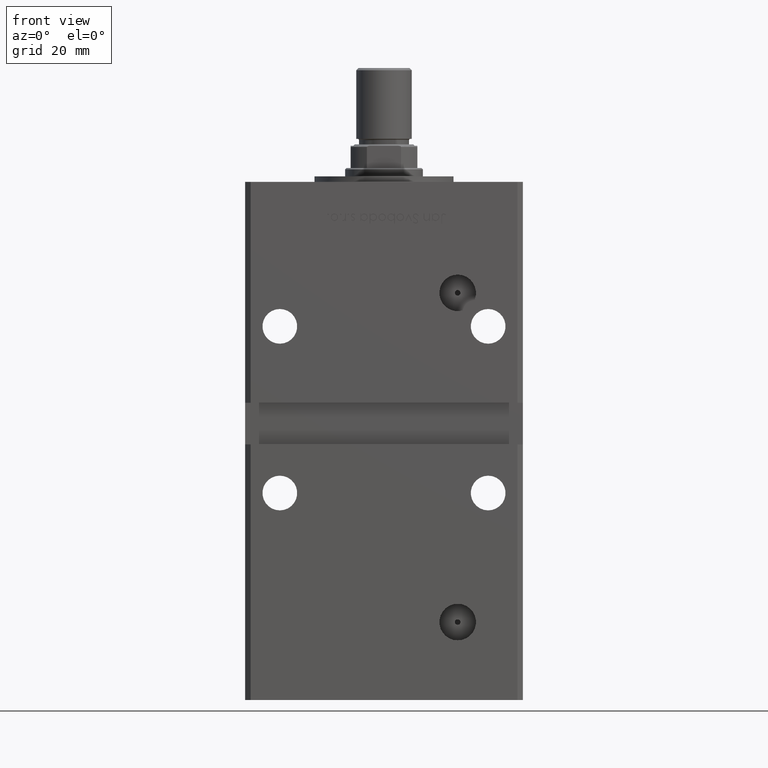
[diagram: clean part render]
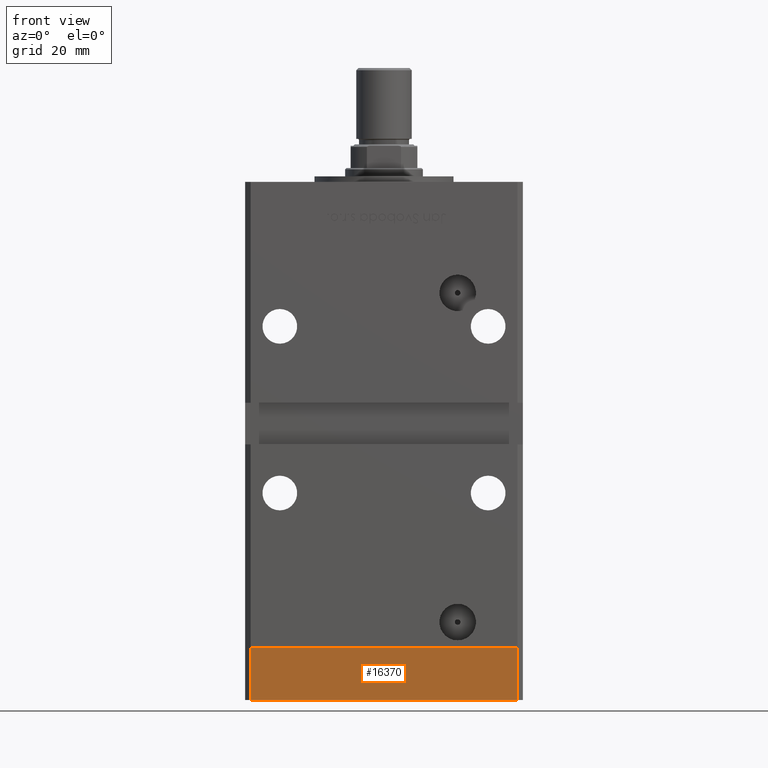
[diagram: same view with one face highlighted and labeled with its STEP entity id]
A machine part, front view. The second image highlights one B-rep face of the part: STEP entity #16370.
In plain terms, the highlighted planar face has unit normal (0, -1, -0).
Its self-contained STEP definition (entity closure, byte-faithful):
#3246 = ORIENTED_EDGE ( 'NONE', *, *, #40921, .F. ) ;
#3377 = DIRECTION ( 'NONE',  ( 0.000000000000000000, 0.000000000000000000, 1.000000000000000000 ) ) ;
#4425 = EDGE_CURVE ( 'NONE', #28523, #15270, #52783, .T. ) ;
#6954 = DIRECTION ( 'NONE',  ( 1.000000000000000000, 0.000000000000000000, 0.000000000000000000 ) ) ;
#8235 = DIRECTION ( 'NONE',  ( 0.000000000000000000, -1.000000000000000000, 0.000000000000000000 ) ) ;
#9174 = AXIS2_PLACEMENT_3D ( 'NONE', #45335, #8235, #41535 ) ;
#10506 = VERTEX_POINT ( 'NONE', #44732 ) ;
#10831 = CARTESIAN_POINT ( 'NONE',  ( -47.99999999999999289, -43.50000000000001421, -19.00000000000000000 ) ) ;
#11308 = ORIENTED_EDGE ( 'NONE', *, *, #48031, .T. ) ;
#11864 = DIRECTION ( 'NONE',  ( 0.000000000000000000, 0.000000000000000000, 1.000000000000000000 ) ) ;
#12302 = FACE_OUTER_BOUND ( 'NONE', #41556, .T. ) ;
#12356 = CARTESIAN_POINT ( 'NONE',  ( 47.99999999999999289, -43.50000000000001421, 0.000000000000000000 ) ) ;
#13670 = CARTESIAN_POINT ( 'NONE',  ( 47.99999999999999289, -43.50000000000001421, -19.00000000000000000 ) ) ;
#13818 = DIRECTION ( 'NONE',  ( 1.000000000000000000, 0.000000000000000000, 0.000000000000000000 ) ) ;
#14085 = ORIENTED_EDGE ( 'NONE', *, *, #34874, .F. ) ;
#15270 = VERTEX_POINT ( 'NONE', #12356 ) ;
#16370 = ADVANCED_FACE ( 'NONE', ( #12302 ), #28822, .T. ) ;
#16681 = VECTOR ( 'NONE', #11864, 1000.000000000000000 ) ;
#17766 = VECTOR ( 'NONE', #3377, 1000.000000000000000 ) ;
#19637 = CARTESIAN_POINT ( 'NONE',  ( -47.99999999999999289, -43.50000000000001421, -19.00000000000000000 ) ) ;
#23180 = VECTOR ( 'NONE', #13818, 1000.000000000000000 ) ;
#28523 = VERTEX_POINT ( 'NONE', #13670 ) ;
#28822 = PLANE ( 'NONE',  #9174 ) ;
#31336 = CARTESIAN_POINT ( 'NONE',  ( -47.99999999999999289, -43.50000000000001421, -19.00000000000000000 ) ) ;
#32181 = CARTESIAN_POINT ( 'NONE',  ( 47.99999999999999289, -43.50000000000001421, -19.00000000000000000 ) ) ;
#34874 = EDGE_CURVE ( 'NONE', #39623, #10506, #40482, .T. ) ;
#37976 = ORIENTED_EDGE ( 'NONE', *, *, #4425, .T. ) ;
#38794 = VECTOR ( 'NONE', #6954, 1000.000000000000000 ) ;
#39623 = VERTEX_POINT ( 'NONE', #10831 ) ;
#40482 = LINE ( 'NONE', #19637, #17766 ) ;
#40921 = EDGE_CURVE ( 'NONE', #10506, #15270, #41718, .T. ) ;
#41535 = DIRECTION ( 'NONE',  ( 0.000000000000000000, -0.000000000000000000, -1.000000000000000000 ) ) ;
#41556 = EDGE_LOOP ( 'NONE', ( #3246, #14085, #11308, #37976 ) ) ;
#41718 = LINE ( 'NONE', #42520, #23180 ) ;
#42520 = CARTESIAN_POINT ( 'NONE',  ( -47.99999999999999289, -43.50000000000001421, 0.000000000000000000 ) ) ;
#44732 = CARTESIAN_POINT ( 'NONE',  ( -47.99999999999999289, -43.50000000000001421, 0.000000000000000000 ) ) ;
#45335 = CARTESIAN_POINT ( 'NONE',  ( -47.99999999999999289, -43.50000000000001421, -19.00000000000000000 ) ) ;
#47324 = LINE ( 'NONE', #31336, #38794 ) ;
#48031 = EDGE_CURVE ( 'NONE', #39623, #28523, #47324, .T. ) ;
#52783 = LINE ( 'NONE', #32181, #16681 ) ;